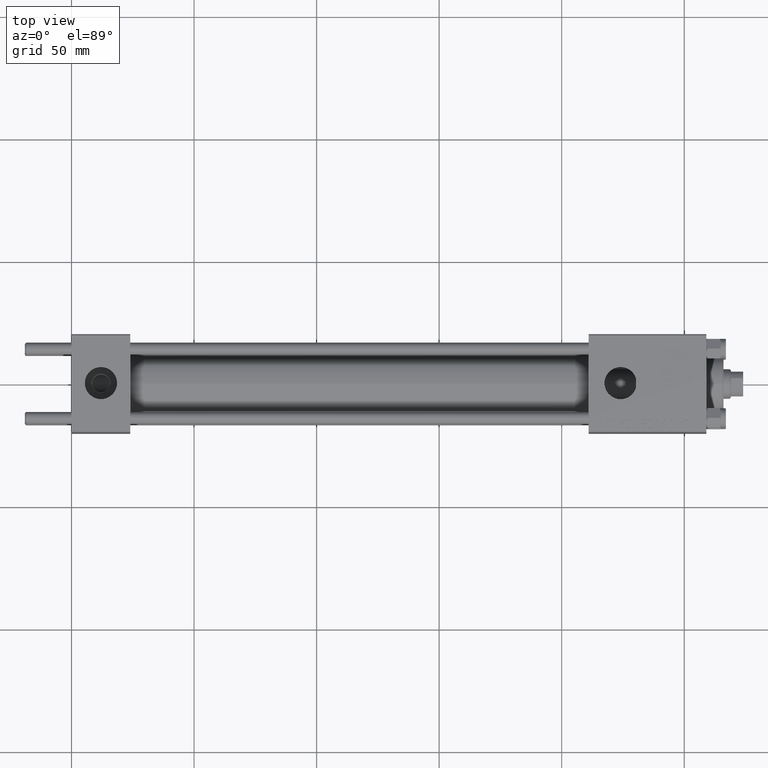
[diagram: clean part render]
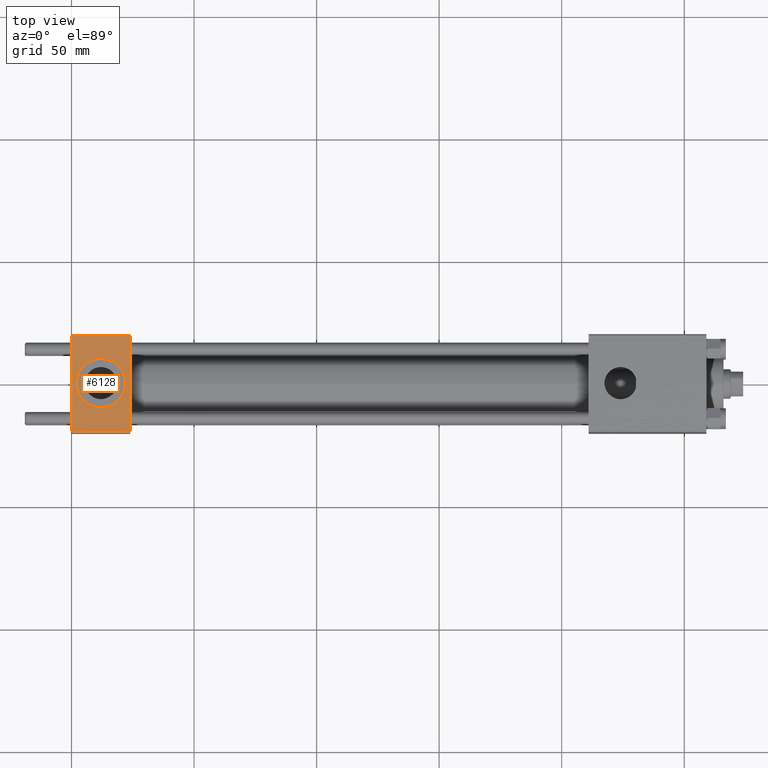
[diagram: same view with one face highlighted and labeled with its STEP entity id]
A machine part, top view. The second image highlights one B-rep face of the part: STEP entity #6128.
In plain terms, the highlighted planar face has unit normal (0, 0, -1).
Its self-contained STEP definition (entity closure, byte-faithful):
#462 = CARTESIAN_POINT ( 'NONE',  ( 24.00000000000000000, 20.00000000000000000, 20.00000000000000000 ) ) ;
#1286 = VERTEX_POINT ( 'NONE', #27441 ) ;
#2246 = PLANE ( 'NONE',  #46935 ) ;
#2723 = CARTESIAN_POINT ( 'NONE',  ( 24.00000000000000000, 19.50000000000000000, 20.00000000000000000 ) ) ;
#3635 = VECTOR ( 'NONE', #7756, 1000.000000000000000 ) ;
#3742 = CIRCLE ( 'NONE', #38319, 9.999999999999998224 ) ;
#3772 = VERTEX_POINT ( 'NONE', #2723 ) ;
#4102 = CARTESIAN_POINT ( 'NONE',  ( 2.000000000000003553, 1.224646799147354440E-15, 19.99999999999999645 ) ) ;
#5405 = DIRECTION ( 'NONE',  ( 1.000000000000000000, 0.000000000000000000, 0.000000000000000000 ) ) ;
#5729 = VERTEX_POINT ( 'NONE', #21282 ) ;
#5935 = CARTESIAN_POINT ( 'NONE',  ( 24.00000000000000000, -19.49999999999999289, 19.99999999999998934 ) ) ;
#6128 = ADVANCED_FACE ( 'NONE', ( #36734, #20877 ), #2246, .F. ) ;
#6271 = DIRECTION ( 'NONE',  ( 0.000000000000000000, 1.000000000000000000, 2.602085213965210149E-16 ) ) ;
#7756 = DIRECTION ( 'NONE',  ( 1.000000000000000000, 0.000000000000000000, 0.000000000000000000 ) ) ;
#9189 = CARTESIAN_POINT ( 'NONE',  ( 12.00000000000000000, 1.540743955509788682E-30, 19.99999999999999645 ) ) ;
#9456 = ORIENTED_EDGE ( 'NONE', *, *, #34398, .F. ) ;
#11899 = EDGE_CURVE ( 'NONE', #3772, #21265, #27655, .T. ) ;
#12256 = CARTESIAN_POINT ( 'NONE',  ( 12.00000000000000000, 1.540743955509788682E-30, 19.99999999999999645 ) ) ;
#13243 = VECTOR ( 'NONE', #18154, 1000.000000000000000 ) ;
#18154 = DIRECTION ( 'NONE',  ( -1.000000000000000000, 0.000000000000000000, 0.000000000000000000 ) ) ;
#19221 = ORIENTED_EDGE ( 'NONE', *, *, #26583, .T. ) ;
#20877 = FACE_OUTER_BOUND ( 'NONE', #21818, .T. ) ;
#21265 = VERTEX_POINT ( 'NONE', #5935 ) ;
#21282 = CARTESIAN_POINT ( 'NONE',  ( 0.000000000000000000, -19.49999999999999289, 19.99999999999998934 ) ) ;
#21818 = EDGE_LOOP ( 'NONE', ( #19221, #49713, #22058, #24353 ) ) ;
#22058 = ORIENTED_EDGE ( 'NONE', *, *, #11899, .F. ) ;
#22532 = EDGE_LOOP ( 'NONE', ( #43708, #9456 ) ) ;
#22910 = DIRECTION ( 'NONE',  ( 0.000000000000000000, -1.000000000000000000, -2.602085213965210149E-16 ) ) ;
#24353 = ORIENTED_EDGE ( 'NONE', *, *, #30657, .T. ) ;
#26583 = EDGE_CURVE ( 'NONE', #1286, #5729, #45799, .T. ) ;
#27441 = CARTESIAN_POINT ( 'NONE',  ( 0.000000000000000000, 19.50000000000000000, 20.00000000000000000 ) ) ;
#27456 = AXIS2_PLACEMENT_3D ( 'NONE', #9189, #32325, #5405 ) ;
#27655 = LINE ( 'NONE', #462, #39849 ) ;
#30657 = EDGE_CURVE ( 'NONE', #3772, #1286, #40537, .T. ) ;
#31067 = EDGE_CURVE ( 'NONE', #5729, #21265, #38224, .T. ) ;
#31638 = DIRECTION ( 'NONE',  ( 1.000000000000000000, 0.000000000000000000, 0.000000000000000000 ) ) ;
#32325 = DIRECTION ( 'NONE',  ( 0.000000000000000000, 0.000000000000000000, 1.000000000000000000 ) ) ;
#32510 = VERTEX_POINT ( 'NONE', #4102 ) ;
#32985 = CARTESIAN_POINT ( 'NONE',  ( 0.000000000000000000, 19.50000000000000000, 20.00000000000000000 ) ) ;
#34398 = EDGE_CURVE ( 'NONE', #32510, #43351, #3742, .T. ) ;
#34958 = DIRECTION ( 'NONE',  ( 0.000000000000000000, -1.000000000000000000, -2.602085213965210149E-16 ) ) ;
#36734 = FACE_BOUND ( 'NONE', #22532, .T. ) ;
#38224 = LINE ( 'NONE', #41984, #3635 ) ;
#38319 = AXIS2_PLACEMENT_3D ( 'NONE', #12256, #42720, #31638 ) ;
#39849 = VECTOR ( 'NONE', #34958, 1000.000000000000000 ) ;
#40537 = LINE ( 'NONE', #32985, #13243 ) ;
#40753 = CARTESIAN_POINT ( 'NONE',  ( 24.00000000000000000, 20.00000000000000000, 20.00000000000000000 ) ) ;
#41760 = CARTESIAN_POINT ( 'NONE',  ( 0.000000000000000000, 20.00000000000000000, 20.00000000000000000 ) ) ;
#41984 = CARTESIAN_POINT ( 'NONE',  ( 24.00000000000000000, -19.49999999999999289, 19.99999999999998934 ) ) ;
#42707 = CIRCLE ( 'NONE', #27456, 9.999999999999998224 ) ;
#42720 = DIRECTION ( 'NONE',  ( 0.000000000000000000, 0.000000000000000000, 1.000000000000000000 ) ) ;
#43153 = CARTESIAN_POINT ( 'NONE',  ( 22.00000000000000000, 1.540743955509788682E-30, 19.99999999999999645 ) ) ;
#43351 = VERTEX_POINT ( 'NONE', #43153 ) ;
#43708 = ORIENTED_EDGE ( 'NONE', *, *, #45784, .F. ) ;
#44533 = DIRECTION ( 'NONE',  ( 0.000000000000000000, 2.602085213965210149E-16, -1.000000000000000000 ) ) ;
#45278 = VECTOR ( 'NONE', #22910, 1000.000000000000000 ) ;
#45784 = EDGE_CURVE ( 'NONE', #43351, #32510, #42707, .T. ) ;
#45799 = LINE ( 'NONE', #41760, #45278 ) ;
#46935 = AXIS2_PLACEMENT_3D ( 'NONE', #40753, #44533, #6271 ) ;
#49713 = ORIENTED_EDGE ( 'NONE', *, *, #31067, .T. ) ;